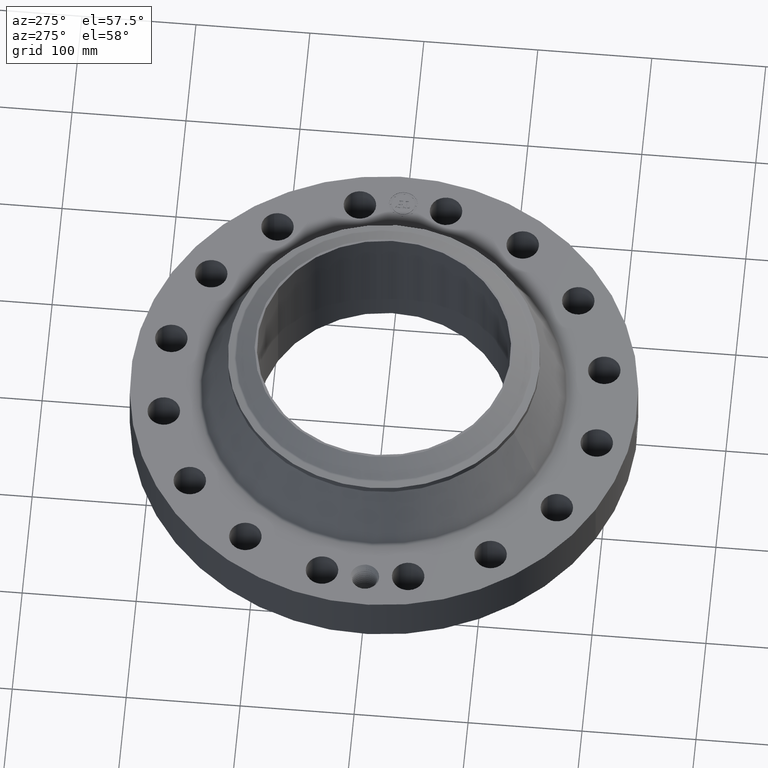
[diagram: clean part render]
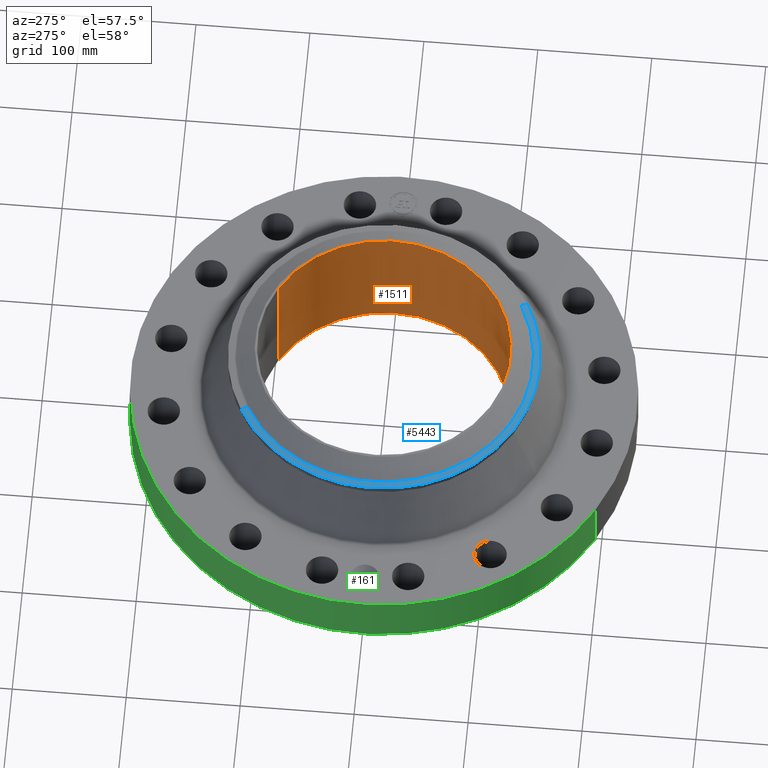
[diagram: same view with three faces highlighted in distinct colors, each labeled with its STEP entity id]
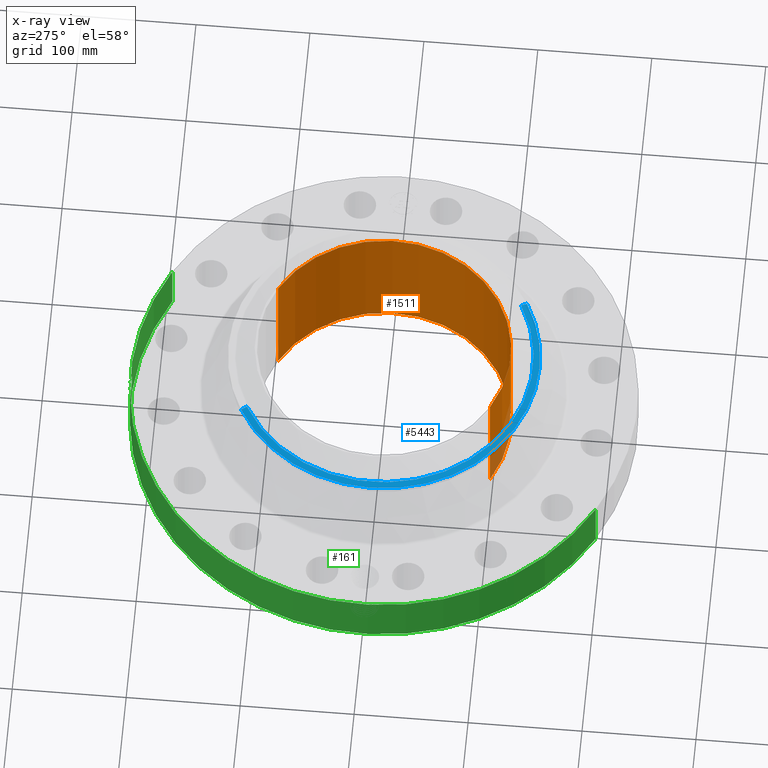
[diagram: x-ray of the same camera — body ghosted, the three highlighted faces saturated]
A machine part, auxiliary view with three faces highlighted in distinct colors.
The next image is the same camera in x-ray (body ghosted, the three faces saturated) — at least one of them is partly hidden behind the body in this view.
Their STEP definitions:

[orange] entity #1511 — the highlighted cylindrical surface (partial cylindrical patch) has radius 111.125 mm, axis along (0, 0, -1).
#244=AXIS2_PLACEMENT_3D('Circle Axis2P3D',#242,#243,$) ;
#1442=AXIS2_PLACEMENT_3D('Cylinder Axis2P3D',#1439,#1440,#1441) ;
#1446=AXIS2_PLACEMENT_3D('Circle Axis2P3D',#1444,#1445,$) ;
#242=CARTESIAN_POINT('Axis2P3D Location',(0.,0.,0.0600000000002)) ;
#246=CARTESIAN_POINT('Vertex',(2.0974867314,3.83942370829,0.0600000000002)) ;
#248=CARTESIAN_POINT('Vertex',(-2.0974867314,-3.83942370829,0.0600000000002)) ;
#1439=CARTESIAN_POINT('Axis2P3D Location',(0.,0.,2.37000000001)) ;
#1444=CARTESIAN_POINT('Axis2P3D Location',(0.,0.,4.68000000002)) ;
#1448=CARTESIAN_POINT('Vertex',(2.0974867314,3.83942370829,4.68000000002)) ;
#1450=CARTESIAN_POINT('Vertex',(-2.0974867314,-3.83942370829,4.68000000002)) ;
#1453=CARTESIAN_POINT('Line Origine',(2.0974867314,3.83942370829,2.37000000001)) ;
#1458=CARTESIAN_POINT('Line Origine',(-2.0974867314,-3.83942370829,2.37000000001)) ;
#1470=CARTESIAN_POINT('Control Point',(0.219395640473,-4.3694954575,0.820143615352)) ;
#1471=CARTESIAN_POINT('Control Point',(0.206921825532,-4.37012177709,0.79731045026)) ;
#1472=CARTESIAN_POINT('Control Point',(0.191478829925,-4.37085255723,0.776102242822)) ;
#1473=CARTESIAN_POINT('Control Point',(0.173346694106,-4.3716313096,0.75703142054)) ;
#1474=CARTESIAN_POINT('Control Point',(0.112147067869,-4.3738833864,0.70755829767)) ;
#1475=CARTESIAN_POINT('Control Point',(0.0350000945357,-4.37534654876,0.684030761428)) ;
#1476=CARTESIAN_POINT('Control Point',(-0.0195410405206,-4.37545612446,0.682387722915)) ;
#1477=CARTESIAN_POINT('Control Point',(-0.124120681159,-4.37384641052,0.707520149222)) ;
#1478=CARTESIAN_POINT('Control Point',(-0.203162153488,-4.37051308474,0.780409167088)) ;
#1479=CARTESIAN_POINT('Control Point',(-0.232145156523,-4.36887123256,0.826611315177)) ;
#1480=CARTESIAN_POINT('Control Point',(-0.255829519937,-4.36751853964,0.904772467487)) ;
#1481=CARTESIAN_POINT('Control Point',(-0.248302223504,-4.36794807788,0.98417335102)) ;
#1482=CARTESIAN_POINT('Control Point',(-0.242067984349,-4.36830910102,1.01076700454)) ;
#1483=CARTESIAN_POINT('Control Point',(-0.232327425775,-4.36884614287,1.03618491044)) ;
#1484=CARTESIAN_POINT('Control Point',(-0.219395640473,-4.3694954575,1.05985638466)) ;
#1485=CARTESIAN_POINT('Vertex',(0.219395640473,-4.3694954575,0.820143615352)) ;
#1487=CARTESIAN_POINT('Vertex',(-0.219395640473,-4.3694954575,1.05985638466)) ;
#1491=CARTESIAN_POINT('Control Point',(-0.219395640473,-4.3694954575,1.05985638466)) ;
#1492=CARTESIAN_POINT('Control Point',(-0.206921825535,-4.37012177709,1.08268954974)) ;
#1493=CARTESIAN_POINT('Control Point',(-0.191478829931,-4.37085255723,1.10389775718)) ;
#1494=CARTESIAN_POINT('Control Point',(-0.173346694096,-4.3716313096,1.12296857948)) ;
#1495=CARTESIAN_POINT('Control Point',(-0.112147067864,-4.3738833864,1.17244170234)) ;
#1496=CARTESIAN_POINT('Control Point',(-0.0350000945384,-4.37534654876,1.19596923858)) ;
#1497=CARTESIAN_POINT('Control Point',(0.0195410405288,-4.37545612446,1.19761227709)) ;
#1498=CARTESIAN_POINT('Control Point',(0.124120681168,-4.37384641052,1.17247985078)) ;
#1499=CARTESIAN_POINT('Control Point',(0.203162153496,-4.37051308473,1.09959083291)) ;
#1500=CARTESIAN_POINT('Control Point',(0.232145156522,-4.36887123256,1.05338868484)) ;
#1501=CARTESIAN_POINT('Control Point',(0.255829519937,-4.36751853964,0.975227532522)) ;
#1502=CARTESIAN_POINT('Control Point',(0.248302223504,-4.36794807788,0.895826648987)) ;
#1503=CARTESIAN_POINT('Control Point',(0.242067984348,-4.36830910102,0.869232995465)) ;
#1504=CARTESIAN_POINT('Control Point',(0.232327425774,-4.36884614287,0.843815089566)) ;
#1505=CARTESIAN_POINT('Control Point',(0.219395640473,-4.3694954575,0.820143615352)) ;
#243=DIRECTION('Axis2P3D Direction',(0.,0.,-0.0393700787402)) ;
#1440=DIRECTION('Axis2P3D Direction',(0.,0.,-0.0393700787402)) ;
#1441=DIRECTION('Axis2P3D XDirection',(-0.0188750212049,-0.0345504945626,0.)) ;
#1445=DIRECTION('Axis2P3D Direction',(0.,0.,-0.0393700787402)) ;
#1454=DIRECTION('Vector Direction',(0.,0.,-0.0393700787402)) ;
#1459=DIRECTION('Vector Direction',(0.,0.,-0.0393700787402)) ;
#1455=VECTOR('Line Direction',#1454,0.0393700787402) ;
#1460=VECTOR('Line Direction',#1459,0.0393700787402) ;
#1464=ORIENTED_EDGE('',*,*,#1452,.F.) ;
#1465=ORIENTED_EDGE('',*,*,#1457,.T.) ;
#1466=ORIENTED_EDGE('',*,*,#250,.T.) ;
#1467=ORIENTED_EDGE('',*,*,#1462,.F.) ;
#1508=ORIENTED_EDGE('',*,*,#1489,.F.) ;
#1509=ORIENTED_EDGE('',*,*,#1506,.F.) ;
#1510=FACE_BOUND('',#1507,.T.) ;
#1511=ADVANCED_FACE('PartBody',(#1468,#1510),#1443,.F.) ;
#1469=B_SPLINE_CURVE_WITH_KNOTS('',5,(#1470,#1471,#1472,#1473,#1474,#1475,#1476,#1477,#1478,#1479,#1480,#1481,#1482,#1483,#1484),.UNSPECIFIED.,.F.,.U.,(6,3,3,3,6),(0.,4.67436526267,14.0217474001,23.3717136061,28.2176960328),.UNSPECIFIED.) ;
#1490=B_SPLINE_CURVE_WITH_KNOTS('',5,(#1491,#1492,#1493,#1494,#1495,#1496,#1497,#1498,#1499,#1500,#1501,#1502,#1503,#1504,#1505),.UNSPECIFIED.,.F.,.U.,(6,3,3,3,6),(0.,4.67436526176,14.0217473987,23.3717136055,28.2176960319),.UNSPECIFIED.) ;
#245=CIRCLE('generated circle',#244,4.37500000002) ;
#1447=CIRCLE('generated circle',#1446,4.37500000002) ;
#1443=CYLINDRICAL_SURFACE('generated cylinder',#1442,4.37500000002) ;
#250=EDGE_CURVE('',#247,#249,#245,.T.) ;
#1452=EDGE_CURVE('',#1449,#1451,#1447,.T.) ;
#1457=EDGE_CURVE('',#1449,#247,#1456,.T.) ;
#1462=EDGE_CURVE('',#1451,#249,#1461,.T.) ;
#1489=EDGE_CURVE('',#1486,#1488,#1469,.T.) ;
#1506=EDGE_CURVE('',#1488,#1486,#1490,.T.) ;
#1463=EDGE_LOOP('',(#1464,#1465,#1466,#1467)) ;
#1507=EDGE_LOOP('',(#1508,#1509)) ;
#1468=FACE_OUTER_BOUND('',#1463,.T.) ;
#1456=LINE('Line',#1453,#1455) ;
#1461=LINE('Line',#1458,#1460) ;
#247=VERTEX_POINT('',#246) ;
#249=VERTEX_POINT('',#248) ;
#1449=VERTEX_POINT('',#1448) ;
#1451=VERTEX_POINT('',#1450) ;
#1486=VERTEX_POINT('',#1485) ;
#1488=VERTEX_POINT('',#1487) ;

[blue] entity #5443 — the highlighted conical surface has half-angle 80 deg.
#3986=AXIS2_PLACEMENT_3D('Circle Axis2P3D',#3984,#3985,$) ;
#3999=AXIS2_PLACEMENT_3D('Circle Axis2P3D',#3997,#3998,$) ;
#4787=AXIS2_PLACEMENT_3D('Circle Axis2P3D',#4785,#4786,$) ;
#5416=AXIS2_PLACEMENT_3D('Cone Axis2P3D',#5413,#5414,#5415) ;
#3967=CARTESIAN_POINT('Vertex',(-2.57691227001,-4.71700627018,4.12200584757)) ;
#3981=CARTESIAN_POINT('Vertex',(2.57691227001,-4.71700627018,4.12200584757)) ;
#3984=CARTESIAN_POINT('Axis2P3D Location',(0.,0.,4.12200584757)) ;
#3997=CARTESIAN_POINT('Axis2P3D Location',(0.,0.,4.12200584757)) ;
#4001=CARTESIAN_POINT('Vertex',(-2.57691227001,4.71700627018,4.12200584757)) ;
#4782=CARTESIAN_POINT('Vertex',(-2.46975769445,4.52086113529,4.16141601924)) ;
#4785=CARTESIAN_POINT('Axis2P3D Location',(0.,0.,4.16141601924)) ;
#4789=CARTESIAN_POINT('Vertex',(2.46975769445,-4.52086113529,4.16141601924)) ;
#5413=CARTESIAN_POINT('Axis2P3D Location',(0.,0.,4.16141601924)) ;
#5418=CARTESIAN_POINT('Line Origine',(-2.52333498223,4.61893370274,4.1417109334)) ;
#5423=CARTESIAN_POINT('Line Origine',(2.52333498223,-4.61893370274,4.1417109334)) ;
#3985=DIRECTION('Axis2P3D Direction',(0.,0.,-0.0393700787402)) ;
#3998=DIRECTION('Axis2P3D Direction',(0.,0.,-0.0393700787402)) ;
#4786=DIRECTION('Axis2P3D Direction',(0.,0.,0.0393700787402)) ;
#5414=DIRECTION('Axis2P3D Direction',(-0.,-0.,-0.0393700787402)) ;
#5415=DIRECTION('Axis2P3D XDirection',(0.0188750212049,-0.0345504945626,0.)) ;
#5419=DIRECTION('Vector Direction',(-0.0185882672208,0.0340255949157,-0.00683654242783)) ;
#5424=DIRECTION('Vector Direction',(0.0185882672208,-0.0340255949157,-0.00683654242783)) ;
#5420=VECTOR('Line Direction',#5419,0.0393700787402) ;
#5425=VECTOR('Line Direction',#5424,0.0393700787402) ;
#5437=ORIENTED_EDGE('',*,*,#5427,.F.) ;
#5438=ORIENTED_EDGE('',*,*,#4791,.F.) ;
#5439=ORIENTED_EDGE('',*,*,#5422,.T.) ;
#5440=ORIENTED_EDGE('',*,*,#4003,.T.) ;
#5441=ORIENTED_EDGE('',*,*,#3988,.F.) ;
#5443=ADVANCED_FACE('PartBody',(#5442),#5417,.T.) ;
#3987=CIRCLE('generated circle',#3986,5.37500000002) ;
#4000=CIRCLE('generated circle',#3999,5.37500000002) ;
#4788=CIRCLE('generated circle',#4787,5.15149380994) ;
#5417=CONICAL_SURFACE('Cone',#5416,5.15149380994,1.3962634016) ;
#3988=EDGE_CURVE('',#3982,#3968,#3987,.T.) ;
#4003=EDGE_CURVE('',#4002,#3968,#4000,.F.) ;
#4791=EDGE_CURVE('',#4783,#4790,#4788,.T.) ;
#5422=EDGE_CURVE('',#4783,#4002,#5421,.T.) ;
#5427=EDGE_CURVE('',#4790,#3982,#5426,.T.) ;
#5436=EDGE_LOOP('',(#5437,#5438,#5439,#5440,#5441)) ;
#5442=FACE_OUTER_BOUND('',#5436,.T.) ;
#5421=LINE('Line',#5418,#5420) ;
#5426=LINE('Line',#5423,#5425) ;
#3968=VERTEX_POINT('',#3967) ;
#3982=VERTEX_POINT('',#3981) ;
#4002=VERTEX_POINT('',#4001) ;
#4783=VERTEX_POINT('',#4782) ;
#4790=VERTEX_POINT('',#4789) ;

[green] entity #161 — the highlighted cylindrical surface (partial cylindrical patch) has radius 222.25 mm, axis along (0, 0, -1).
#38=AXIS2_PLACEMENT_3D('Cylinder Axis2P3D',#35,#36,#37) ;
#42=AXIS2_PLACEMENT_3D('Circle Axis2P3D',#40,#41,$) ;
#58=AXIS2_PLACEMENT_3D('Circle Axis2P3D',#56,#57,$) ;
#35=CARTESIAN_POINT('Axis2P3D Location',(0.,0.,2.37000000001)) ;
#40=CARTESIAN_POINT('Axis2P3D Location',(0.,0.,0.0600000000002)) ;
#44=CARTESIAN_POINT('Vertex',(-4.1949734628,-7.67884741657,0.0600000000002)) ;
#46=CARTESIAN_POINT('Vertex',(4.1949734628,7.67884741657,0.0600000000002)) ;
#49=CARTESIAN_POINT('Line Origine',(-4.1949734628,-7.67884741657,1.)) ;
#53=CARTESIAN_POINT('Vertex',(-4.1949734628,-7.67884741657,1.94000000001)) ;
#56=CARTESIAN_POINT('Axis2P3D Location',(0.,0.,1.94000000001)) ;
#60=CARTESIAN_POINT('Vertex',(4.1949734628,7.67884741657,1.94000000001)) ;
#63=CARTESIAN_POINT('Line Origine',(4.1949734628,7.67884741657,1.)) ;
#75=CARTESIAN_POINT('Control Point',(-0.0581089625365,8.74980704639,1.28931263406)) ;
#76=CARTESIAN_POINT('Control Point',(-0.0391512505227,8.74993294779,1.29247036247)) ;
#77=CARTESIAN_POINT('Control Point',(-0.0199353917117,8.74999839758,1.29407954697)) ;
#78=CARTESIAN_POINT('Control Point',(-0.00071621135312,8.74999997072,1.29411849893)) ;
#79=CARTESIAN_POINT('Vertex',(-0.0580953077663,8.74980738873,1.28931519353)) ;
#81=CARTESIAN_POINT('Vertex',(-0.00071608712392,8.74999997073,1.29411850938)) ;
#85=CARTESIAN_POINT('Control Point',(-0.0580952083203,8.74980713772,1.28931463772)) ;
#86=CARTESIAN_POINT('Control Point',(-0.0974883504076,8.74954558307,1.28448275707)) ;
#87=CARTESIAN_POINT('Control Point',(-0.136130062226,8.749012969,1.27246972712)) ;
#88=CARTESIAN_POINT('Control Point',(-0.171610206376,8.74831697744,1.25416185771)) ;
#89=CARTESIAN_POINT('Vertex',(-0.171610206376,8.74831697744,1.25416185771)) ;
#93=CARTESIAN_POINT('Control Point',(-0.0302669452422,8.74994765199,0.531133858009)) ;
#94=CARTESIAN_POINT('Control Point',(-0.0865126331964,8.74975309253,0.538286206307)) ;
#95=CARTESIAN_POINT('Control Point',(-0.141163784516,8.74911210098,0.555899644813)) ;
#96=CARTESIAN_POINT('Control Point',(-0.191479474366,8.74808366127,0.583467506994)) ;
#97=CARTESIAN_POINT('Control Point',(-0.264585210924,8.74612690907,0.642883900397)) ;
#98=CARTESIAN_POINT('Control Point',(-0.316528471667,8.74430507465,0.719208877368)) ;
#99=CARTESIAN_POINT('Control Point',(-0.33358370849,8.74365536413,0.751880832631)) ;
#100=CARTESIAN_POINT('Control Point',(-0.368975032969,8.74224702288,0.844035268635)) ;
#101=CARTESIAN_POINT('Control Point',(-0.375098714797,8.74194353724,0.942677587401)) ;
#102=CARTESIAN_POINT('Control Point',(-0.366946053507,8.7423150234,1.0043264818)) ;
#103=CARTESIAN_POINT('Control Point',(-0.333642919171,8.7437418217,1.10228712865)) ;
#104=CARTESIAN_POINT('Control Point',(-0.270966418076,8.74586349314,1.18272418419)) ;
#105=CARTESIAN_POINT('Control Point',(-0.241231340892,8.74676440562,1.21147018009)) ;
#106=CARTESIAN_POINT('Control Point',(-0.207766138598,8.74760772936,1.2355052793)) ;
#107=CARTESIAN_POINT('Control Point',(-0.171610206376,8.74831697744,1.25416185771)) ;
#108=CARTESIAN_POINT('Vertex',(-0.0302669452421,8.74994765199,0.531133858009)) ;
#112=CARTESIAN_POINT('Control Point',(-0.0302669452421,8.74994765199,0.531133858009)) ;
#113=CARTESIAN_POINT('Control Point',(-0.020172125313,8.74998257099,0.530866678197)) ;
#114=CARTESIAN_POINT('Control Point',(-0.0100722732255,8.75000000318,0.530947102164)) ;
#115=CARTESIAN_POINT('Control Point',(2.72878355316E-006,8.75000000003,0.531374667805)) ;
#116=CARTESIAN_POINT('Vertex',(2.72878354006E-006,8.75000000003,0.531374667805)) ;
#120=CARTESIAN_POINT('Control Point',(0.19328241765,8.74786499139,0.58620888473)) ;
#121=CARTESIAN_POINT('Control Point',(0.149259962889,8.74883765918,0.561336698193)) ;
#122=CARTESIAN_POINT('Control Point',(0.101168835307,8.74960564366,0.543535968943)) ;
#123=CARTESIAN_POINT('Control Point',(0.050824675197,8.74999998419,0.533531464397)) ;
#124=CARTESIAN_POINT('Control Point',(2.72878352207E-006,8.75000000003,0.531374667805)) ;
#125=CARTESIAN_POINT('Vertex',(0.19328241765,8.74786499139,0.58620888473)) ;
#129=CARTESIAN_POINT('Control Point',(0.19328241765,8.74786499139,0.58620888473)) ;
#130=CARTESIAN_POINT('Control Point',(0.222320018151,8.74722341112,0.602614798415)) ;
#131=CARTESIAN_POINT('Control Point',(0.249702852797,8.74649784976,0.621904373397)) ;
#132=CARTESIAN_POINT('Control Point',(0.275025900485,8.74572453905,0.643907791801)) ;
#133=CARTESIAN_POINT('Control Point',(0.341959851612,8.74345928947,0.715550689506)) ;
#134=CARTESIAN_POINT('Control Point',(0.38472149487,8.74157999932,0.805221661384)) ;
#135=CARTESIAN_POINT('Control Point',(0.399824078796,8.74084549763,0.869596656537)) ;
#136=CARTESIAN_POINT('Control Point',(0.400741236115,8.74084616963,0.983900945056)) ;
#137=CARTESIAN_POINT('Control Point',(0.360682761475,8.74259093649,1.08862858387)) ;
#138=CARTESIAN_POINT('Control Point',(0.336434934054,8.74359787656,1.13009590904)) ;
#139=CARTESIAN_POINT('Control Point',(0.267541246724,8.74613174572,1.21398892365)) ;
#140=CARTESIAN_POINT('Control Point',(0.174601876331,8.74851033483,1.26870826521)) ;
#141=CARTESIAN_POINT('Control Point',(0.11742773881,8.74951483398,1.28858356661)) ;
#142=CARTESIAN_POINT('Control Point',(0.0582715844821,8.75000017228,1.29701111921)) ;
#143=CARTESIAN_POINT('Control Point',(-2.5857935541E-005,8.75,1.29415298432)) ;
#144=CARTESIAN_POINT('Vertex',(-2.58579355366E-005,8.75,1.29415298432)) ;
#148=CARTESIAN_POINT('Control Point',(-0.000716087113735,8.74999997073,1.29411850936)) ;
#149=CARTESIAN_POINT('Control Point',(-0.000370996570186,8.74999999898,1.2941360633)) ;
#150=CARTESIAN_POINT('Control Point',(-2.58579413603E-005,8.75,1.29415298432)) ;
#36=DIRECTION('Axis2P3D Direction',(0.,0.,-0.0393700787402)) ;
#37=DIRECTION('Axis2P3D XDirection',(0.0188750212049,0.0345504945626,0.)) ;
#41=DIRECTION('Axis2P3D Direction',(0.,0.,-0.0393700787402)) ;
#50=DIRECTION('Vector Direction',(0.,0.,-0.0393700787402)) ;
#57=DIRECTION('Axis2P3D Direction',(0.,0.,-0.0393700787402)) ;
#64=DIRECTION('Vector Direction',(0.,0.,-0.0393700787402)) ;
#51=VECTOR('Line Direction',#50,0.0393700787402) ;
#65=VECTOR('Line Direction',#64,0.0393700787402) ;
#69=ORIENTED_EDGE('',*,*,#48,.F.) ;
#70=ORIENTED_EDGE('',*,*,#55,.T.) ;
#71=ORIENTED_EDGE('',*,*,#62,.T.) ;
#72=ORIENTED_EDGE('',*,*,#67,.F.) ;
#153=ORIENTED_EDGE('',*,*,#83,.F.) ;
#154=ORIENTED_EDGE('',*,*,#91,.T.) ;
#155=ORIENTED_EDGE('',*,*,#110,.F.) ;
#156=ORIENTED_EDGE('',*,*,#118,.T.) ;
#157=ORIENTED_EDGE('',*,*,#127,.F.) ;
#158=ORIENTED_EDGE('',*,*,#146,.T.) ;
#159=ORIENTED_EDGE('',*,*,#151,.F.) ;
#160=FACE_BOUND('',#152,.T.) ;
#161=ADVANCED_FACE('PartBody',(#73,#160),#39,.T.) ;
#74=B_SPLINE_CURVE_WITH_KNOTS('',3,(#75,#76,#77,#78),.UNSPECIFIED.,.F.,.U.,(4,4),(4.38916387418,6.52135751608),.UNSPECIFIED.) ;
#84=B_SPLINE_CURVE_WITH_KNOTS('',3,(#85,#86,#87,#88),.UNSPECIFIED.,.F.,.U.,(4,4),(0.,4.45941834661),.UNSPECIFIED.) ;
#92=B_SPLINE_CURVE_WITH_KNOTS('',5,(#93,#94,#95,#96,#97,#98,#99,#100,#101,#102,#103,#104,#105,#106,#107),.UNSPECIFIED.,.F.,.U.,(6,3,3,3,6),(0.,9.8538926856,16.4310811961,27.5941599197,35.1680876143),.UNSPECIFIED.) ;
#111=B_SPLINE_CURVE_WITH_KNOTS('',3,(#112,#113,#114,#115),.UNSPECIFIED.,.F.,.U.,(4,4),(0.,1.05295553536),.UNSPECIFIED.) ;
#119=B_SPLINE_CURVE_WITH_KNOTS('',4,(#120,#121,#122,#123,#124),.UNSPECIFIED.,.F.,.U.,(5,5),(0.,7.08198368362),.UNSPECIFIED.) ;
#128=B_SPLINE_CURVE_WITH_KNOTS('',5,(#129,#130,#131,#132,#133,#134,#135,#136,#137,#138,#139,#140,#141,#142,#143),.UNSPECIFIED.,.F.,.U.,(6,3,3,3,6),(0.,5.8391737931,17.100762781,25.5637752958,36.4607761721),.UNSPECIFIED.) ;
#147=B_SPLINE_CURVE_WITH_KNOTS('',2,(#148,#149,#150),.UNSPECIFIED.,.F.,.U.,(3,3),(1.04631464727,1.07212007524),.UNSPECIFIED.) ;
#43=CIRCLE('generated circle',#42,8.75000000003) ;
#59=CIRCLE('generated circle',#58,8.75000000003) ;
#39=CYLINDRICAL_SURFACE('generated cylinder',#38,8.75000000003) ;
#48=EDGE_CURVE('',#45,#47,#43,.T.) ;
#55=EDGE_CURVE('',#45,#54,#52,.F.) ;
#62=EDGE_CURVE('',#54,#61,#59,.T.) ;
#67=EDGE_CURVE('',#47,#61,#66,.F.) ;
#83=EDGE_CURVE('',#80,#82,#74,.T.) ;
#91=EDGE_CURVE('',#80,#90,#84,.T.) ;
#110=EDGE_CURVE('',#109,#90,#92,.T.) ;
#118=EDGE_CURVE('',#109,#117,#111,.T.) ;
#127=EDGE_CURVE('',#126,#117,#119,.T.) ;
#146=EDGE_CURVE('',#126,#145,#128,.T.) ;
#151=EDGE_CURVE('',#82,#145,#147,.T.) ;
#68=EDGE_LOOP('',(#69,#70,#71,#72)) ;
#152=EDGE_LOOP('',(#153,#154,#155,#156,#157,#158,#159)) ;
#73=FACE_OUTER_BOUND('',#68,.T.) ;
#52=LINE('Line',#49,#51) ;
#66=LINE('Line',#63,#65) ;
#45=VERTEX_POINT('',#44) ;
#47=VERTEX_POINT('',#46) ;
#54=VERTEX_POINT('',#53) ;
#61=VERTEX_POINT('',#60) ;
#80=VERTEX_POINT('',#79) ;
#82=VERTEX_POINT('',#81) ;
#90=VERTEX_POINT('',#89) ;
#109=VERTEX_POINT('',#108) ;
#117=VERTEX_POINT('',#116) ;
#126=VERTEX_POINT('',#125) ;
#145=VERTEX_POINT('',#144) ;